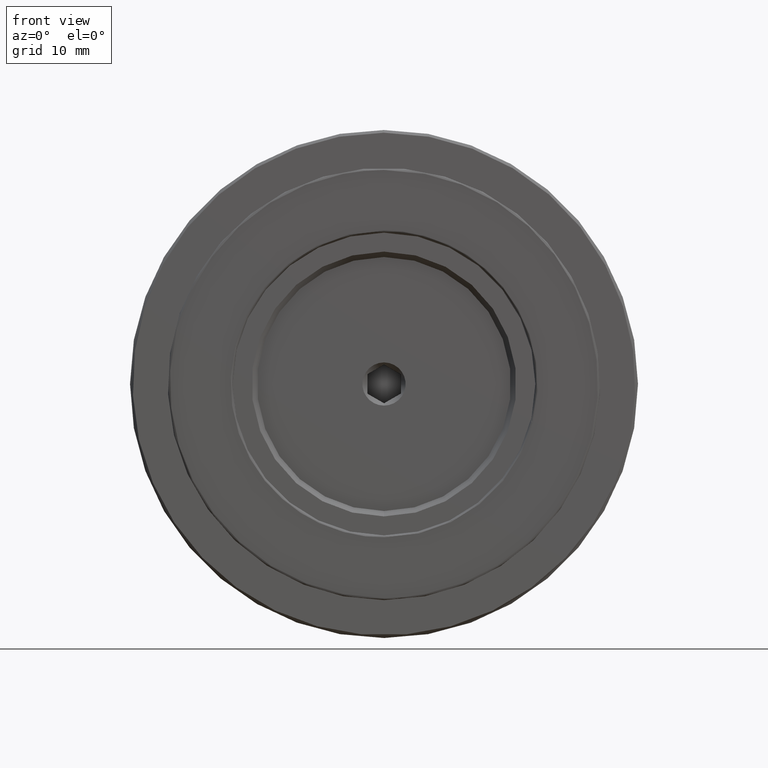
[diagram: clean part render]
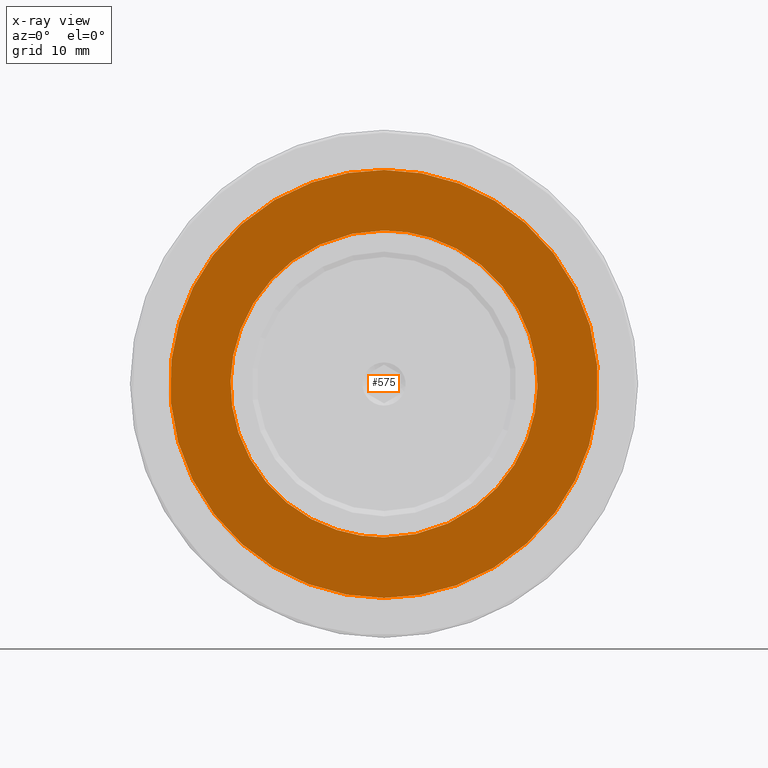
[diagram: x-ray — body ghosted, one internal face saturated and labeled with its STEP entity id]
A machine part, front view, then the same camera in x-ray: the body is ghosted and one INTERNAL B-rep face — a face not visible from any outside direction — is saturated and labeled: STEP entity #575.
In plain terms, the highlighted planar face has unit normal (0, 1, 0).
Its self-contained STEP definition (entity closure, byte-faithful):
#4 = CARTESIAN_POINT ( 'NONE',  ( -7.416387268887614681, 3.000000000000000000, 12.11045924268794671 ) ) ;
#7 = CARTESIAN_POINT ( 'NONE',  ( 0.000000000000000000, 3.000000000000000000, 14.20000000000000107 ) ) ;
#9 = CARTESIAN_POINT ( 'NONE',  ( 1.730011291808339902, 3.000000000000000444, 14.12097874383844953 ) ) ;
#13 = CARTESIAN_POINT ( 'NONE',  ( -3.706425153886331092, 3.000000000000000888, 13.72138168101778355 ) ) ;
#16 = CARTESIAN_POINT ( 'NONE',  ( -4.798924351256767196, 3.000000000000000000, -13.37246130060882798 ) ) ;
#25 = FACE_BOUND ( 'NONE', #448, .T. ) ;
#26 = CARTESIAN_POINT ( 'NONE',  ( 5.998205943359876002, 3.000000000000000444, 12.87497621973774464 ) ) ;
#28 = CARTESIAN_POINT ( 'NONE',  ( 7.138804101191232654, 3.000000000000001332, 18.46832826363610280 ) ) ;
#34 = CARTESIAN_POINT ( 'NONE',  ( 16.93856988259020113, 3.000000000000000888, 10.27487358570370013 ) ) ;
#36 = CARTESIAN_POINT ( 'NONE',  ( -19.13259729012592203, 3.000000000000000000, 5.168229993298614211 ) ) ;
#40 = CARTESIAN_POINT ( 'NONE',  ( 3.081251968856588697, 3.000000000000000444, 19.55983207345531483 ) ) ;
#42 = CARTESIAN_POINT ( 'NONE',  ( -18.39503843575699094, 3.000000000000000000, -7.325580478327587741 ) ) ;
#48 = CARTESIAN_POINT ( 'NONE',  ( -18.64612716550223581, 3.000000000000000000, -6.691391585285191290 ) ) ;
#52 = CARTESIAN_POINT ( 'NONE',  ( 18.18768613575041826, 3.000000000000000444, 7.829357525106005689 ) ) ;
#56 = CARTESIAN_POINT ( 'NONE',  ( -19.46211127315827483, 3.000000000000000000, -3.642334045259706610 ) ) ;
#60 = CARTESIAN_POINT ( 'NONE',  ( 1.082802891726577732, 3.000000000000000888, -14.17036702893942390 ) ) ;
#61 = CARTESIAN_POINT ( 'NONE',  ( 16.66359733036504309, 2.999999999999999112, -10.69446383543457557 ) ) ;
#63 = CARTESIAN_POINT ( 'NONE',  ( -19.23875786356212458, 3.000000000000000000, -4.700551688777544257 ) ) ;
#65 = CARTESIAN_POINT ( 'NONE',  ( 1.834886159228197977, 2.999999999999999112, -14.08393753001272231 ) ) ;
#66 = CARTESIAN_POINT ( 'NONE',  ( 15.82475369394309439, 2.999999999999999556, -11.97856748988204068 ) ) ;
#71 = CARTESIAN_POINT ( 'NONE',  ( 8.474581984828116532, 3.000000000000000000, 11.39866490199642257 ) ) ;
#72 = CARTESIAN_POINT ( 'NONE',  ( -11.74964521155649599, 3.000000000000000000, 7.974327091084079555 ) ) ;
#73 = CARTESIAN_POINT ( 'NONE',  ( 19.45468878221270614, 3.000000000000000000, 3.681774236538998490 ) ) ;
#75 = CARTESIAN_POINT ( 'NONE',  ( -10.27487358571512921, 3.000000000000000888, 16.93856988258366059 ) ) ;
#78 = CARTESIAN_POINT ( 'NONE',  ( 7.820564197478176105, 3.000000000000000000, 11.85252323523757134 ) ) ;
#81 = CARTESIAN_POINT ( 'NONE',  ( -13.22410563940344908, 3.000000000000000444, -5.173376533014694800 ) ) ;
#82 = CARTESIAN_POINT ( 'NONE',  ( 19.75870916176383929, 3.000000000000000000, -1.509731756243323453 ) ) ;
#84 = CARTESIAN_POINT ( 'NONE',  ( -18.43924353577552111, 2.999999999999999556, 7.213589522442043211 ) ) ;
#87 = CARTESIAN_POINT ( 'NONE',  ( 7.669756295061795015, 3.000000000000000444, -11.95066623152829877 ) ) ;
#88 = CARTESIAN_POINT ( 'NONE',  ( -7.669756295060129681, 3.000000000000000888, 11.95066623152905372 ) ) ;
#89 = CARTESIAN_POINT ( 'NONE',  ( 19.46600353387483295, 3.000000000000000000, 3.621469905571973680 ) ) ;
#90 = EDGE_CURVE ( 'NONE', #665, #1243, #550, .T. ) ;
#92 = CARTESIAN_POINT ( 'NONE',  ( -4.153607807517124328, 3.000000000000000000, 19.36063313184550339 ) ) ;
#94 = CARTESIAN_POINT ( 'NONE',  ( 13.72138168101400701, 3.000000000000000000, 3.706425153909070680 ) ) ;
#95 = CARTESIAN_POINT ( 'NONE',  ( -7.872727466868456148, 3.000000000000000000, -11.81794863245012550 ) ) ;
#102 = CARTESIAN_POINT ( 'NONE',  ( 11.81794863244995319, 3.000000000000000444, -7.872727466868832735 ) ) ;
#103 = CARTESIAN_POINT ( 'NONE',  ( -13.72138168101338884, 3.000000000000000444, -3.706425153902123792 ) ) ;
#116 = CARTESIAN_POINT ( 'NONE',  ( 4.147525266413648382, 3.000000000000000444, 13.59455466430607551 ) ) ;
#121 = CARTESIAN_POINT ( 'NONE',  ( -4.850803227461398137, 3.000000000000000000, 13.34666984494703712 ) ) ;
#129 = B_SPLINE_CURVE_WITH_KNOTS ( 'NONE', 3,
 ( #7, #523, #1244, #937, #1044, #530, #318, #1051, #942, #1142, #13, #429, #121, #842, #1258, #325, #537, #950, #722, #807, #4, #1347, #88, #1113, #1131, #713, #718, #902, #210, #389, #72, #824, #510, #308, #1246, #1233, #1227, #1241, #801, #909, #198, #1005, #1219, #1331, #706, #293, #286, #488, #926, #314, #700, #412, #1323, #496, #187, #625, #204, #1033, #604, #611, #103, #520, #934, #1012, #420, #81, #1119, #830, #1125, #1020, #504, #1106, #917, #181, #302, #1339, #618, #404, #594, #1026, #815, #95, #1147, #329, #548, #1254, #959, #836, #343, #725, #753, #16, #632, #740, #1042, #216, #139, #846, #851, #242, #553, #656 ),
 .UNSPECIFIED., .F., .F.,
 ( 4, 1, 1, 1, 1, 2, 2, 1, 1, 1, 1, 2, 2, 1, 1, 1, 2, 2, 2, 1, 1, 1, 2, 2, 1, 1, 1, 1, 2, 2, 1, 1, 1, 1, 2, 2, 2, 1, 1, 1, 1, 2, 2, 1, 1, 1, 1, 2, 2, 1, 1, 1, 2, 2, 2, 1, 1, 1, 2, 2, 1, 1, 1, 1, 2, 2, 1, 1, 1, 1, 2, 2, 4 ),
 ( 0.000000000000000000, 0.03125000000000022898, 0.04687500000000034694, 0.05468750000000039552, 0.05859375000000041633, 0.06054687500000043021, 0.06250000000000044409, 0.09375000000000084655, 0.1093750000000010408, 0.1171875000000011657, 0.1210937500000012074, 0.1230468750000012212, 0.1250000000000012490, 0.1562500000000021372, 0.1718750000000025535, 0.1796875000000027200, 0.1835937500000028033, 0.1875000000000029143, 0.2500000000000038303, 0.2812500000000043854, 0.2968750000000046629, 0.3046875000000048295, 0.3085937500000048850, 0.3125000000000048850, 0.3437500000000045519, 0.3593750000000043299, 0.3671875000000042744, 0.3710937500000042744, 0.3730468750000042744, 0.3750000000000043299, 0.4062500000000046074, 0.4218750000000047740, 0.4296875000000048295, 0.4335937500000048295, 0.4355468750000048295, 0.4375000000000048850, 0.5000000000000054401, 0.5312500000000056621, 0.5468750000000057732, 0.5546875000000058842, 0.5585937500000058842, 0.5605468750000058842, 0.5625000000000058842, 0.5937500000000058842, 0.6093750000000058842, 0.6171875000000059952, 0.6210937500000059952, 0.6230468750000059952, 0.6250000000000059952, 0.6562500000000054401, 0.6718750000000052180, 0.6796875000000052180, 0.6835937500000051070, 0.6875000000000049960, 0.7500000000000034417, 0.7812500000000027756, 0.7968750000000024425, 0.8046875000000021094, 0.8085937500000018874, 0.8125000000000017764, 0.8437500000000013323, 0.8593750000000011102, 0.8671875000000009992, 0.8710937500000008882, 0.8730468750000009992, 0.8750000000000009992, 0.9062500000000003331, 0.9218750000000001110, 0.9296874999999998890, 0.9335937499999998890, 0.9355468749999998890, 0.9374999999999998890, 1.000000000000000000 ),
 .UNSPECIFIED. ) ;
#132 = CARTESIAN_POINT ( 'NONE',  ( 0.000000000000000000, 3.000000000000000000, 14.20000000000000107 ) ) ;
#134 = CARTESIAN_POINT ( 'NONE',  ( 3.472566155666716892, 3.000000000000000000, 19.49317256158505884 ) ) ;
#139 = CARTESIAN_POINT ( 'NONE',  ( -2.697004024368328867, 3.000000000000000000, -13.94155648821191740 ) ) ;
#140 = CARTESIAN_POINT ( 'NONE',  ( 6.763846819823553069, 3.000000000000000888, 18.61013061852413131 ) ) ;
#142 = CARTESIAN_POINT ( 'NONE',  ( -19.47309619219853971, 3.000000000000000000, 3.583141907330241960 ) ) ;
#149 = CARTESIAN_POINT ( 'NONE',  ( -3.472566155665417487, 3.000000000000000000, -19.49317256158505529 ) ) ;
#154 = CARTESIAN_POINT ( 'NONE',  ( 10.76326471872024371, 3.000000000000000000, 16.61924596139300547 ) ) ;
#157 = CARTESIAN_POINT ( 'NONE',  ( -7.213589522438963009, 3.000000000000000000, -18.43924353577610731 ) ) ;
#161 = CARTESIAN_POINT ( 'NONE',  ( 2.558549258542372140, 3.000000000000000000, 19.63816641508817185 ) ) ;
#164 = CARTESIAN_POINT ( 'NONE',  ( -17.44277610778776477, 3.000000000000000000, -9.411654203769527882 ) ) ;
#167 = CARTESIAN_POINT ( 'NONE',  ( 18.16359589799271390, 3.000000000000000444, -7.910242654717952959 ) ) ;
#170 = CARTESIAN_POINT ( 'NONE',  ( -7.026526274942309414, 2.999999999999999556, -18.51160490855000162 ) ) ;
#174 = CARTESIAN_POINT ( 'NONE',  ( 17.74927439584680400, 3.000000000000000444, -8.820027942225207696 ) ) ;
#180 = CARTESIAN_POINT ( 'NONE',  ( 10.73381815341000944, 3.000000000000000444, 9.347961879281847075 ) ) ;
#181 = CARTESIAN_POINT ( 'NONE',  ( -11.91884916617823009, 2.999999999999999556, -7.719113968638293244 ) ) ;
#182 = CARTESIAN_POINT ( 'NONE',  ( 18.61013061852425210, 3.000000000000000000, -6.763846819818803979 ) ) ;
#184 = CARTESIAN_POINT ( 'NONE',  ( -8.363614776118732053, 3.000000000000000444, 17.95247335177376868 ) ) ;
#186 = CARTESIAN_POINT ( 'NONE',  ( 13.12450815807737747, 2.999999999999999556, -5.421599283992075691 ) ) ;
#187 = CARTESIAN_POINT ( 'NONE',  ( -14.02777076837137571, 3.000000000000000444, -2.209700421636168421 ) ) ;
#188 = CARTESIAN_POINT ( 'NONE',  ( 4.700551688765440161, 3.000000000000001332, -19.23875786356436990 ) ) ;
#195 = CARTESIAN_POINT ( 'NONE',  ( 13.88488799109564731, 3.000000000000000444, -2.978886455187739202 ) ) ;
#198 = CARTESIAN_POINT ( 'NONE',  ( -13.19240216099132468, 3.000000000000000444, 5.253696158561357521 ) ) ;
#199 = CARTESIAN_POINT ( 'NONE',  ( 9.411654203755773551, 3.000000000000000888, -17.44277610779676380 ) ) ;
#203 = CARTESIAN_POINT ( 'NONE',  ( 12.50942579821810341, 3.000000000000000000, -6.749849503557366681 ) ) ;
#204 = CARTESIAN_POINT ( 'NONE',  ( -13.98230959436743071, 3.000000000000000000, -2.477042311640894390 ) ) ;
#207 = CARTESIAN_POINT ( 'NONE',  ( -7.829357525114765792, 3.000000000000000000, 18.18768613574539472 ) ) ;
#209 = CARTESIAN_POINT ( 'NONE',  ( 13.04367664318270137, 3.000000000000000444, -5.615027597993797137 ) ) ;
#210 = CARTESIAN_POINT ( 'NONE',  ( -11.39866490200367011, 2.999999999999999556, 8.474581984816722979 ) ) ;
#216 = CARTESIAN_POINT ( 'NONE',  ( -2.781722452255339650, 3.000000000000000000, -13.92508270725363673 ) ) ;
#230 = CARTESIAN_POINT ( 'NONE',  ( 2.781722452252762157, 2.999999999999999556, 13.92508270725408437 ) ) ;
#238 = CARTESIAN_POINT ( 'NONE',  ( 17.44277610779923293, 3.000000000000000000, 9.411654203749513670 ) ) ;
#242 = CARTESIAN_POINT ( 'NONE',  ( -1.730011291807642237, 3.000000000000000444, -14.12097874383844953 ) ) ;
#244 = CARTESIAN_POINT ( 'NONE',  ( 3.528417264787766960, 3.000000000000000000, 19.48308486305747067 ) ) ;
#247 = CARTESIAN_POINT ( 'NONE',  ( 0.000000000000000000, 3.000000000000000000, 0.000000000000000000 ) ) ;
#249 = CARTESIAN_POINT ( 'NONE',  ( 2.530479713262244967, 3.000000000000000888, -13.97273671934008021 ) ) ;
#250 = CARTESIAN_POINT ( 'NONE',  ( 3.342195983484820054, 3.000000000000000000, 19.51614561369851941 ) ) ;
#253 = CARTESIAN_POINT ( 'NONE',  ( -18.46832826363607438, 3.000000000000000444, 7.138804101192748774 ) ) ;
#255 = CARTESIAN_POINT ( 'NONE',  ( 2.555583697174101054, 3.000000000000000444, -13.96817057994191558 ) ) ;
#256 = CARTESIAN_POINT ( 'NONE',  ( 7.249402286486083646, 2.999999999999999112, 18.42519663997724422 ) ) ;
#259 = CARTESIAN_POINT ( 'NONE',  ( -8.820027942236979612, 3.000000000000000000, -17.74927439584292443 ) ) ;
#263 = CARTESIAN_POINT ( 'NONE',  ( 16.38332867207753907, 3.000000000000000444, 11.11910680565512344 ) ) ;
#265 = CARTESIAN_POINT ( 'NONE',  ( -19.80001621424732150, 3.000000000000000000, 0.6053561151454147637 ) ) ;
#268 = CARTESIAN_POINT ( 'NONE',  ( 19.63818769628777616, 3.000000000000000444, -2.558434240462676090 ) ) ;
#270 = CARTESIAN_POINT ( 'NONE',  ( -19.51615226407340842, 3.000000000000000000, 3.342160040330514725 ) ) ;
#275 = CARTESIAN_POINT ( 'NONE',  ( 19.55984448748841231, 2.999999999999999556, -3.081184874976765187 ) ) ;
#280 = CARTESIAN_POINT ( 'NONE',  ( 11.91884916617795653, 2.999999999999999556, 7.719113968638859014 ) ) ;
#281 = CARTESIAN_POINT ( 'NONE',  ( 3.681774236540197975, 3.000000000000000000, -19.45468878221224074 ) ) ;
#283 = CARTESIAN_POINT ( 'NONE',  ( -3.740909107246154885, 3.000000000000000444, 19.44346757633632095 ) ) ;
#285 = CARTESIAN_POINT ( 'NONE',  ( 12.11045924267994067, 3.000000000000001332, 7.416387268901814878 ) ) ;
#286 = CARTESIAN_POINT ( 'NONE',  ( -13.94155648821209148, 2.999999999999999556, 2.697004024367753772 ) ) ;
#287 = CARTESIAN_POINT ( 'NONE',  ( 17.18714439674351624, 3.000000000000000444, -9.840903924965051175 ) ) ;
#289 = CARTESIAN_POINT ( 'NONE',  ( -18.42519663997739343, 3.000000000000000444, 7.249402286486132496 ) ) ;
#292 = CARTESIAN_POINT ( 'NONE',  ( 8.590610968959124349, 3.000000000000000000, -11.34912974933076057 ) ) ;
#293 = CARTESIAN_POINT ( 'NONE',  ( -13.92508270725393515, 3.000000000000000444, 2.781722452254356437 ) ) ;
#294 = CARTESIAN_POINT ( 'NONE',  ( 16.88639066887527207, 3.000000000000000888, -10.34120686983032478 ) ) ;
#301 = CARTESIAN_POINT ( 'NONE',  ( 13.94155648821216076, 3.000000000000000444, -2.697004024366957076 ) ) ;
#302 = CARTESIAN_POINT ( 'NONE',  ( -11.34912974933079788, 3.000000000000001332, -8.590610968960662674 ) ) ;
#305 = CARTESIAN_POINT ( 'NONE',  ( -11.11910680565343945, 3.000000000000000888, 16.38332867207820698 ) ) ;
#307 = CARTESIAN_POINT ( 'NONE',  ( 14.20001621245517853, 3.000000000000000444, 0.4340943566674300147 ) ) ;
#308 = CARTESIAN_POINT ( 'NONE',  ( -12.14784045183978733, 3.000000000000000888, 7.368892902801093214 ) ) ;
#313 = CARTESIAN_POINT ( 'NONE',  ( 2.429699249508348905E-15, 3.000000000000000000, -19.80000000000000426 ) ) ;
#314 = CARTESIAN_POINT ( 'NONE',  ( -14.12094629255596523, 3.000000000000000444, 1.730186617944320160 ) ) ;
#318 = CARTESIAN_POINT ( 'NONE',  ( -2.477063362970028049, 3.000000000000000888, 13.98230569957839187 ) ) ;
#325 = CARTESIAN_POINT ( 'NONE',  ( -5.173376533013583689, 3.000000000000000000, 13.22410563940375461 ) ) ;
#329 = CARTESIAN_POINT ( 'NONE',  ( -7.368892902803392708, 3.000000000000000444, -12.14784045183863803 ) ) ;
#343 = CARTESIAN_POINT ( 'NONE',  ( -5.338307333424706869, 2.999999999999999112, -13.15839622942529630 ) ) ;
#344 = CARTESIAN_POINT ( 'NONE',  ( 14.48387497789035727, 3.000000000000000888, 13.51757983630651161 ) ) ;
#350 = CARTESIAN_POINT ( 'NONE',  ( 4.472002724374330107, 3.000000000000000444, -13.48095980255595627 ) ) ;
#351 = CARTESIAN_POINT ( 'NONE',  ( 7.910242654749028546, 2.999999999999999556, 18.16359589797801632 ) ) ;
#354 = CARTESIAN_POINT ( 'NONE',  ( -6.763846819809253397, 2.999999999999999556, -18.61013061852770889 ) ) ;
#360 = CARTESIAN_POINT ( 'NONE',  ( -5.168229993254894516, 3.000000000000000444, -19.13259729013419275 ) ) ;
#362 = CARTESIAN_POINT ( 'NONE',  ( 2.477063362969727400, 3.000000000000000444, -13.98230569957839542 ) ) ;
#366 = CARTESIAN_POINT ( 'NONE',  ( -7.249402286487605096, 3.000000000000000888, -18.42519663997647328 ) ) ;
#369 = CARTESIAN_POINT ( 'NONE',  ( 0.4341819849685836785, 2.999999999999999556, -14.19999999999999574 ) ) ;
#370 = CARTESIAN_POINT ( 'NONE',  ( 15.16772011751734439, 3.000000000000000000, 12.75948386910768484 ) ) ;
#372 = CARTESIAN_POINT ( 'NONE',  ( -3.528417264787016006, 3.000000000000000888, -19.48308486305747422 ) ) ;
#376 = CARTESIAN_POINT ( 'NONE',  ( 19.35264957303652267, 3.000000000000000000, -4.234117411515136098 ) ) ;
#378 = CARTESIAN_POINT ( 'NONE',  ( -10.34120686983546911, 3.000000000000000444, -16.88639066887358453 ) ) ;
#380 = CARTESIAN_POINT ( 'NONE',  ( 13.98230959436742893, 2.999999999999999556, 2.477042311639563898 ) ) ;
#383 = CARTESIAN_POINT ( 'NONE',  ( 7.443540500197413756, 2.999999999999999112, -18.34763054796759008 ) ) ;
#388 = CARTESIAN_POINT ( 'NONE',  ( 13.27600511154736296, 2.999999999999999556, 5.039206408471651244 ) ) ;
#389 = CARTESIAN_POINT ( 'NONE',  ( -11.64627428617496641, 2.999999999999999556, 8.125977182826503054 ) ) ;
#390 = CARTESIAN_POINT ( 'NONE',  ( 18.42519663997633828, 3.000000000000000000, -7.249402286488025204 ) ) ;
#396 = CARTESIAN_POINT ( 'NONE',  ( 10.87780390053109514, 3.000000000000000444, -9.150809940503922491 ) ) ;
#398 = CARTESIAN_POINT ( 'NONE',  ( 19.48308685025281406, 2.999999999999999112, -3.528406524632257568 ) ) ;
#400 = CARTESIAN_POINT ( 'NONE',  ( -11.33054582022643153, 3.000000000000000444, 16.23920533858844806 ) ) ;
#403 = CARTESIAN_POINT ( 'NONE',  ( 11.74964521155497543, 2.999999999999999556, -7.974327091086322206 ) ) ;
#404 = CARTESIAN_POINT ( 'NONE',  ( -9.150809940501241968, 3.000000000000001332, -10.87780390053238833 ) ) ;
#405 = CARTESIAN_POINT ( 'NONE',  ( 1.211243036399705764, 3.000000000000000000, -19.80000000000000071 ) ) ;
#408 = CARTESIAN_POINT ( 'NONE',  ( -12.75948386910132193, 3.000000000000000444, 15.16772011751985616 ) ) ;
#410 = CARTESIAN_POINT ( 'NONE',  ( 12.72931748239331640, 3.000000000000000444, 6.325397282971376711 ) ) ;
#412 = CARTESIAN_POINT ( 'NONE',  ( -14.20001621245518386, 3.000000000000000888, -0.4340943566729716929 ) ) ;
#415 = CARTESIAN_POINT ( 'NONE',  ( -14.96698312987518875, 3.000000000000000000, 13.03439284669734022 ) ) ;
#420 = CARTESIAN_POINT ( 'NONE',  ( -13.24496599267793329, 3.000000000000000000, -5.119736970926531683 ) ) ;
#429 = CARTESIAN_POINT ( 'NONE',  ( -4.472002724373625782, 3.000000000000000000, 13.48095980255575732 ) ) ;
#430 = FACE_OUTER_BOUND ( 'NONE', #734, .T. ) ;
#444 = CARTESIAN_POINT ( 'NONE',  ( 5.615027597992565234, 3.000000000000000444, 13.04367664318331244 ) ) ;
#446 = CARTESIAN_POINT ( 'NONE',  ( 0.000000000000000000, 3.000000000000000000, 19.80000000000000426 ) ) ;
#448 = EDGE_LOOP ( 'NONE', ( #809, #1170 ) ) ;
#455 = CARTESIAN_POINT ( 'NONE',  ( -19.75870916176383929, 3.000000000000000000, 1.509731756224550914 ) ) ;
#458 = CARTESIAN_POINT ( 'NONE',  ( 8.820027942279589084, 2.999999999999999556, 17.74927439582107169 ) ) ;
#460 = CARTESIAN_POINT ( 'NONE',  ( -14.48387497788971423, 3.000000000000000888, -13.51757983630604976 ) ) ;
#463 = CARTESIAN_POINT ( 'NONE',  ( 1.509885113682916780, 3.000000000000000000, 19.75868078683102169 ) ) ;
#466 = CARTESIAN_POINT ( 'NONE',  ( -6.235696467292281220, 3.000000000000000444, -18.79736952587457566 ) ) ;
#468 = CARTESIAN_POINT ( 'NONE',  ( 5.168229993287580371, 3.000000000000000444, 19.13259729012602151 ) ) ;
#472 = CARTESIAN_POINT ( 'NONE',  ( -9.840903924973883221, 3.000000000000000888, -17.18714439674061722 ) ) ;
#476 = CARTESIAN_POINT ( 'NONE',  ( 8.363614776108407867, 3.000000000000000000, -17.95247335178050818 ) ) ;
#478 = CARTESIAN_POINT ( 'NONE',  ( -19.41667247643191985, 3.000000000000000444, -3.878712558700827540 ) ) ;
#482 = CARTESIAN_POINT ( 'NONE',  ( 2.209767512049998661, 3.000000000000000000, -14.02775835571037710 ) ) ;
#483 = CARTESIAN_POINT ( 'NONE',  ( 10.97745174759765874, 2.999999999999999556, -16.47855889594601209 ) ) ;
#484 = ORIENTED_EDGE ( 'NONE', *, *, #793, .T. ) ;
#487 = CARTESIAN_POINT ( 'NONE',  ( 8.125977182833143075, 3.000000000000000888, 11.64627428617074223 ) ) ;
#488 = CARTESIAN_POINT ( 'NONE',  ( -13.95237178085820950, 3.000000000000000444, 2.640476279224353906 ) ) ;
#489 = CARTESIAN_POINT ( 'NONE',  ( 19.79996757150536268, 3.000000000000000444, 1.210712230312306792 ) ) ;
#491 = CARTESIAN_POINT ( 'NONE',  ( -3.878712558700825763, 3.000000000000000000, 19.41667247643191274 ) ) ;
#495 = CARTESIAN_POINT ( 'NONE',  ( 7.368892902795777466, 3.000000000000000000, 12.14784045184310735 ) ) ;
#496 = CARTESIAN_POINT ( 'NONE',  ( -14.08395880886015128, 2.999999999999999556, -1.834771147090209054 ) ) ;
#498 = CARTESIAN_POINT ( 'NONE',  ( 11.33054582023130052, 3.000000000000000444, -16.23920533858526127 ) ) ;
#500 = CARTESIAN_POINT ( 'NONE',  ( -7.365999281344150162, 3.000000000000000000, 18.37889477448356601 ) ) ;
#503 = CARTESIAN_POINT ( 'NONE',  ( 11.85252323523766549, 3.000000000000000444, -7.820564197477978929 ) ) ;
#504 = CARTESIAN_POINT ( 'NONE',  ( -12.11045924268475105, 3.000000000000000000, -7.416387268893537055 ) ) ;
#505 = CARTESIAN_POINT ( 'NONE',  ( 6.691391585275955123, 3.000000000000000000, -18.64612716550394822 ) ) ;
#509 = CARTESIAN_POINT ( 'NONE',  ( 13.48095980255292581, 3.000000000000000000, 4.472002724390681472 ) ) ;
#510 = CARTESIAN_POINT ( 'NONE',  ( -11.85252323523798168, 3.000000000000000000, 7.820564197477518853 ) ) ;
#514 = CARTESIAN_POINT ( 'NONE',  ( -18.16359589797574614, 3.000000000000000444, 7.910242654748324220 ) ) ;
#517 = CARTESIAN_POINT ( 'NONE',  ( 14.08395880886014950, 3.000000000000000000, 1.834771147082935538 ) ) ;
#520 = CARTESIAN_POINT ( 'NONE',  ( -13.48095980255246573, 3.000000000000000000, -4.472002724385468753 ) ) ;
#523 = CARTESIAN_POINT ( 'NONE',  ( -0.4341819849698525524, 2.999999999999999556, 14.20000000000000284 ) ) ;
#526 = CARTESIAN_POINT ( 'NONE',  ( 6.749849503554551156, 2.999999999999999112, 12.50942579821949963 ) ) ;
#530 = CARTESIAN_POINT ( 'NONE',  ( -2.396918118229163674, 3.000000000000000000, 13.99642766234944347 ) ) ;
#531 = CARTESIAN_POINT ( 'NONE',  ( -1.509885113672168711, 3.000000000000000000, -19.75868078683102524 ) ) ;
#537 = CARTESIAN_POINT ( 'NONE',  ( -5.199069047050950410, 3.000000000000000000, 13.21402848904016025 ) ) ;
#548 = CARTESIAN_POINT ( 'NONE',  ( -6.749849503567865838, 3.000000000000000000, -12.50942579821168721 ) ) ;
#549 = CARTESIAN_POINT ( 'NONE',  ( 6.235696467316794944, 3.000000000000000000, 18.79736952586845788 ) ) ;
#550 = B_SPLINE_CURVE_WITH_KNOTS ( 'NONE', 3,
 ( #446, #975, #463, #161, #40, #250, #134, #244, #1193, #755, #1303, #468, #549, #140, #775, #28, #554, #256, #351, #458, #1275, #767, #980, #1183, #154, #1083, #663, #344, #370, #877, #781, #263, #885, #986, #34, #238, #1175, #52, #652, #1063, #1168, #967, #1021, #1006, #1220, #1325, #891, #590, #73, #994, #89, #1310, #489, #1095, #82, #268, #275, #689, #1107, #398, #1206, #1000, #376, #684, #1101, #182, #903, #788, #808, #390, #167, #174, #287, #294, #583, #61, #802, #66, #707, #1120, #897, #701, #498, #595, #483, #1228, #1114, #199, #476, #612, #1316, #383, #910, #605, #505, #1340, #188, #794, #1332, #1214, #281, #694, #1013, #918, #405, #1199 ),
 .UNSPECIFIED., .F., .F.,
 ( 4, 1, 1, 1, 1, 1, 2, 2, 1, 1, 1, 1, 2, 2, 1, 1, 1, 2, 2, 2, 1, 1, 1, 2, 2, 1, 1, 1, 1, 2, 2, 1, 1, 1, 1, 1, 2, 2, 2, 1, 1, 1, 1, 1, 2, 2, 1, 1, 1, 1, 2, 2, 1, 1, 1, 2, 2, 2, 1, 1, 1, 2, 2, 1, 1, 1, 1, 2, 2, 1, 1, 1, 1, 1, 2, 2, 4 ),
 ( 0.000000000000000000, 0.03124999999999923672, 0.04687499999999885508, 0.05468749999999866079, 0.05859374999999855671, 0.06054687499999852202, 0.06152343749999848732, 0.06249999999999845957, 0.09374999999999845957, 0.1093749999999984873, 0.1171874999999985151, 0.1210937499999985151, 0.1230468749999984873, 0.1249999999999984734, 0.1562499999999985567, 0.1718749999999986122, 0.1796874999999985845, 0.1835937499999985567, 0.1874999999999985567, 0.2499999999999980016, 0.2812499999999976685, 0.2968749999999975575, 0.3046874999999975575, 0.3085937499999975020, 0.3124999999999974465, 0.3437499999999974465, 0.3593749999999975020, 0.3671874999999975575, 0.3710937499999976130, 0.3730468749999976130, 0.3749999999999976130, 0.4062499999999977240, 0.4218749999999977240, 0.4296874999999977240, 0.4335937499999977240, 0.4355468749999977240, 0.4365234374999977796, 0.4374999999999977796, 0.4999999999999970024, 0.5312499999999965583, 0.5468749999999964473, 0.5546874999999963363, 0.5585937499999962252, 0.5605468749999962252, 0.5615234374999961142, 0.5624999999999961142, 0.5937499999999945599, 0.6093749999999938938, 0.6171874999999935607, 0.6210937499999933387, 0.6230468749999933387, 0.6249999999999932276, 0.6562499999999920064, 0.6718749999999913403, 0.6796874999999910072, 0.6835937499999910072, 0.6874999999999908962, 0.7499999999999898970, 0.7812499999999894529, 0.7968749999999893419, 0.8046874999999892308, 0.8085937499999892308, 0.8124999999999892308, 0.8437499999999900080, 0.8593749999999904521, 0.8671874999999906741, 0.8710937499999907851, 0.8730468749999908962, 0.8749999999999908962, 0.9062499999999932276, 0.9218749999999942268, 0.9296874999999947820, 0.9335937499999951150, 0.9355468749999951150, 0.9365234374999952260, 0.9374999999999953371, 1.000000000000000000 ),
 .UNSPECIFIED. ) ;
#553 = CARTESIAN_POINT ( 'NONE',  ( -0.8687195103901316218, 3.000000000000000444, -14.20000000000000462 ) ) ;
#554 = CARTESIAN_POINT ( 'NONE',  ( 7.213589522441262503, 3.000000000000000000, 18.43924353577553532 ) ) ;
#556 = CARTESIAN_POINT ( 'NONE',  ( -3.342195983482302513, 3.000000000000000000, -19.51614561369852296 ) ) ;
#565 = CARTESIAN_POINT ( 'NONE',  ( -18.37889477448356246, 2.999999999999999112, -7.365999281344152827 ) ) ;
#572 = CARTESIAN_POINT ( 'NONE',  ( -16.47855889594651657, 2.999999999999999112, -10.97745174759688602 ) ) ;
#575 = ADVANCED_FACE ( 'NONE', ( #25, #430 ), #1171, .T. ) ;
#579 = CARTESIAN_POINT ( 'NONE',  ( -19.63818769628778327, 3.000000000000000444, 2.558434240448591357 ) ) ;
#583 = CARTESIAN_POINT ( 'NONE',  ( 16.75327720086389860, 3.000000000000000444, -10.55345062195015160 ) ) ;
#587 = CARTESIAN_POINT ( 'NONE',  ( -18.18768613574539472, 3.000000000000000444, -7.829357525114763128 ) ) ;
#590 = CARTESIAN_POINT ( 'NONE',  ( 19.44346757633750045, 3.000000000000000444, 3.740909107242130549 ) ) ;
#593 = CARTESIAN_POINT ( 'NONE',  ( 9.694465362568458033, 3.000000000000000000, 10.38739349963254277 ) ) ;
#594 = CARTESIAN_POINT ( 'NONE',  ( -8.474581984821110581, 3.000000000000000444, -11.39866490200031635 ) ) ;
#595 = CARTESIAN_POINT ( 'NONE',  ( 11.11910680565637044, 3.000000000000000000, -16.38332867207628851 ) ) ;
#597 = CARTESIAN_POINT ( 'NONE',  ( -15.82475369391771913, 3.000000000000000000, 11.97856748991182485 ) ) ;
#601 = CARTESIAN_POINT ( 'NONE',  ( 13.18082072000020588, 3.000000000000000000, -5.282691788219424645 ) ) ;
#604 = CARTESIAN_POINT ( 'NONE',  ( -13.96817057994208078, 2.999999999999999556, -2.555583697173564595 ) ) ;
#605 = CARTESIAN_POINT ( 'NONE',  ( 7.325580478328152623, 3.000000000000000000, -18.39503843575688791 ) ) ;
#607 = CARTESIAN_POINT ( 'NONE',  ( -7.325580478327585965, 2.999999999999999556, 18.39503843575698383 ) ) ;
#610 = CARTESIAN_POINT ( 'NONE',  ( 13.15839622942617204, 3.000000000000000444, -5.338307333423273349 ) ) ;
#611 = CARTESIAN_POINT ( 'NONE',  ( -13.87918665668772356, 3.000000000000000000, -3.036541697514686611 ) ) ;
#612 = CARTESIAN_POINT ( 'NONE',  ( 7.829357525108746607, 3.000000000000000444, -18.18768613574933823 ) ) ;
#617 = CARTESIAN_POINT ( 'NONE',  ( 13.97273871423202607, 3.000000000000000888, 2.530468930873623012 ) ) ;
#618 = CARTESIAN_POINT ( 'NONE',  ( -9.694465362563128963, 3.000000000000000000, -10.38739349963550396 ) ) ;
#622 = CARTESIAN_POINT ( 'NONE',  ( -5.783052985809681523, 3.000000000000000000, 18.95582101055332203 ) ) ;
#624 = CARTESIAN_POINT ( 'NONE',  ( 12.14784045184230621, 2.999999999999999556, -7.368892902797391287 ) ) ;
#625 = CARTESIAN_POINT ( 'NONE',  ( -13.99643431198926891, 3.000000000000000000, -2.396882176935521080 ) ) ;
#632 = CARTESIAN_POINT ( 'NONE',  ( -4.147525266424636925, 3.000000000000000000, -13.59455466430416237 ) ) ;
#636 = CARTESIAN_POINT ( 'NONE',  ( 2.429699249508348905E-15, 3.000000000000000000, -19.80000000000000426 ) ) ;
#637 = CARTESIAN_POINT ( 'NONE',  ( 5.421599283991413110, 3.000000000000000444, 13.12450815807771143 ) ) ;
#647 = DIRECTION ( 'NONE',  ( 0.000000000000000000, -0.000000000000000000, 1.000000000000000000 ) ) ;
#652 = CARTESIAN_POINT ( 'NONE',  ( 18.30038356822856471, 3.000000000000000444, 7.559669515313443888 ) ) ;
#656 = CARTESIAN_POINT ( 'NONE',  ( 1.738998454789241549E-15, 3.000000000000000000, -14.20000000000000107 ) ) ;
#661 = CARTESIAN_POINT ( 'NONE',  ( -19.45468878221203468, 3.000000000000000444, -3.681774236541330403 ) ) ;
#662 = CARTESIAN_POINT ( 'NONE',  ( 4.850803227461809364, 3.000000000000000000, -13.34666984494715258 ) ) ;
#663 = CARTESIAN_POINT ( 'NONE',  ( 13.03439284670022857, 3.000000000000000888, 14.96698312986790746 ) ) ;
#665 = VERTEX_POINT ( 'NONE', #1277 ) ;
#666 = CARTESIAN_POINT ( 'NONE',  ( -19.35264957303631661, 3.000000000000000444, 4.234117411527638986 ) ) ;
#668 = CARTESIAN_POINT ( 'NONE',  ( 5.119736970924492425, 2.999999999999999112, -13.24496599267857277 ) ) ;
#673 = CARTESIAN_POINT ( 'NONE',  ( -17.95247335177376158, 2.999999999999999112, -8.363614776118730276 ) ) ;
#676 = CARTESIAN_POINT ( 'NONE',  ( 7.057559989981163184, 3.000000000000000000, -12.32616377432936439 ) ) ;
#680 = CARTESIAN_POINT ( 'NONE',  ( -4.234117411502668737, 3.000000000000000000, -19.35264957304104172 ) ) ;
#682 = CARTESIAN_POINT ( 'NONE',  ( 0.000000000000000000, 3.000000000000000000, 14.20000000000000107 ) ) ;
#684 = CARTESIAN_POINT ( 'NONE',  ( 19.13259729012628085, 3.000000000000000444, -5.168229993276725054 ) ) ;
#686 = CARTESIAN_POINT ( 'NONE',  ( -19.47630693512028088, 3.000000000000000444, 3.565641053980509234 ) ) ;
#689 = CARTESIAN_POINT ( 'NONE',  ( 19.51615226407340842, 3.000000000000000000, -3.342160040334915649 ) ) ;
#693 = CARTESIAN_POINT ( 'NONE',  ( 11.34912974933512686, 3.000000000000000444, 8.590610968951596149 ) ) ;
#694 = CARTESIAN_POINT ( 'NONE',  ( 3.642334045259132402, 3.000000000000000888, -19.46211127315837430 ) ) ;
#696 = CARTESIAN_POINT ( 'NONE',  ( -7.443540500199307353, 3.000000000000000888, 18.34763054796636439 ) ) ;
#699 = CARTESIAN_POINT ( 'NONE',  ( 13.95799841710783795, 3.000000000000000888, -2.610553116949489549 ) ) ;
#700 = CARTESIAN_POINT ( 'NONE',  ( -14.19996757508963547, 2.999999999999999112, 0.8681887133459453842 ) ) ;
#701 = CARTESIAN_POINT ( 'NONE',  ( 11.81659851331422928, 3.000000000000000444, -15.89397157663446158 ) ) ;
#703 = CARTESIAN_POINT ( 'NONE',  ( -16.75327720085608973, 3.000000000000000888, 10.55345062196415284 ) ) ;
#705 = CARTESIAN_POINT ( 'NONE',  ( 14.19996757508963725, 2.999999999999999556, -0.8681887133348712426 ) ) ;
#706 = CARTESIAN_POINT ( 'NONE',  ( -13.88488799109541816, 3.000000000000001332, 2.978886455190285165 ) ) ;
#707 = CARTESIAN_POINT ( 'NONE',  ( 14.96698312986247537, 3.000000000000001332, -13.03439284670565890 ) ) ;
#711 = CARTESIAN_POINT ( 'NONE',  ( 7.719113968638390944, 3.000000000000000444, -11.91884916617823365 ) ) ;
#713 = CARTESIAN_POINT ( 'NONE',  ( -9.347961879270801688, 2.999999999999999556, 10.73381815342736623 ) ) ;
#716 = CARTESIAN_POINT ( 'NONE',  ( -11.81659851330588751, 2.999999999999999556, 15.89397157663991322 ) ) ;
#717 = CARTESIAN_POINT ( 'NONE',  ( 14.17039540073598758, 3.000000000000000444, 1.082649542199564330 ) ) ;
#718 = CARTESIAN_POINT ( 'NONE',  ( -10.38739349963806369, 3.000000000000000888, 9.694465362559784083 ) ) ;
#722 = CARTESIAN_POINT ( 'NONE',  ( -6.325397282938908461, 3.000000000000000000, 12.72931748241162708 ) ) ;
#725 = CARTESIAN_POINT ( 'NONE',  ( -5.282691788220154727, 3.000000000000000888, -13.18082071999976179 ) ) ;
#730 = CARTESIAN_POINT ( 'NONE',  ( 2.978886455187309323, 3.000000000000000000, 13.88488799109570415 ) ) ;
#734 = EDGE_LOOP ( 'NONE', ( #905, #484 ) ) ;
#739 = CARTESIAN_POINT ( 'NONE',  ( 0.8687195103908673666, 3.000000000000000444, 14.20000000000000107 ) ) ;
#740 = CARTESIAN_POINT ( 'NONE',  ( -3.371165145867376811, 3.000000000000000444, -13.79747498308616294 ) ) ;
#753 = CARTESIAN_POINT ( 'NONE',  ( -5.253696158561206531, 3.000000000000000000, -13.19240216099136731 ) ) ;
#755 = CARTESIAN_POINT ( 'NONE',  ( 3.583141907330436915, 2.999999999999999112, 19.47309619219852905 ) ) ;
#763 = CARTESIAN_POINT ( 'NONE',  ( -18.61013061852409578, 3.000000000000000444, 6.763846819828385648 ) ) ;
#767 = CARTESIAN_POINT ( 'NONE',  ( 10.34120686985411375, 3.000000000000000000, 16.88639066886401352 ) ) ;
#769 = CARTESIAN_POINT ( 'NONE',  ( -16.38332867207724775, 3.000000000000000444, -11.11910680565490850 ) ) ;
#775 = CARTESIAN_POINT ( 'NONE',  ( 7.026526274949969952, 3.000000000000000444, 18.51160490854809382 ) ) ;
#778 = CARTESIAN_POINT ( 'NONE',  ( -10.76326471872110702, 3.000000000000000444, -16.61924596139201071 ) ) ;
#781 = CARTESIAN_POINT ( 'NONE',  ( 16.23920533858734316, 3.000000000000000888, 11.33054582022922929 ) ) ;
#783 = CARTESIAN_POINT ( 'NONE',  ( -16.52675377707250348, 3.000000000000000000, -10.90473805843965849 ) ) ;
#788 = CARTESIAN_POINT ( 'NONE',  ( 18.46832826363612767, 3.000000000000000888, -7.138804101189741402 ) ) ;
#787 = B_SPLINE_CURVE_WITH_KNOTS ( 'NONE', 3,
 ( #999, #369, #60, #65, #482, #1088, #362, #249, #255, #896, #869, #350, #662, #1073, #668, #974, #1287, #1081, #1093, #676, #1118, #1124, #87, #711, #292, #1232, #813, #396, #1105, #1031, #403, #102, #503, #624, #203, #1112, #209, #186, #610, #601, #806, #916, #823, #1130, #195, #1338, #301, #1004, #699, #1218, #705, #307, #717, #517, #1315, #1226, #380, #617, #1019, #1025, #94, #509, #792, #388, #800, #924, #1346, #1321, #410, #1239, #285, #1211, #908, #280, #693, #180, #593, #1330, #71, #487, #901, #1011, #78, #495, #526, #26, #444, #637, #1165, #855, #1053, #958, #116, #1273, #730, #230, #835, #1060, #1245, #9, #739, #132 ),
 .UNSPECIFIED., .F., .F.,
 ( 4, 1, 1, 1, 1, 2, 2, 1, 1, 1, 1, 2, 2, 1, 1, 1, 2, 2, 2, 1, 1, 1, 2, 2, 1, 1, 1, 1, 2, 2, 1, 1, 1, 1, 2, 2, 2, 1, 1, 1, 1, 2, 2, 1, 1, 1, 1, 2, 2, 1, 1, 1, 2, 2, 2, 1, 1, 1, 2, 2, 1, 1, 1, 1, 2, 2, 1, 1, 1, 1, 2, 2, 4 ),
 ( 0.000000000000000000, 0.03125000000000118655, 0.04687500000000177636, 0.05468750000000206085, 0.05859375000000220657, 0.06054687500000226902, 0.06250000000000233147, 0.09375000000000389966, 0.1093750000000047046, 0.1171875000000051070, 0.1210937500000052597, 0.1230468750000053291, 0.1250000000000053846, 0.1562500000000061895, 0.1718750000000065226, 0.1796875000000067168, 0.1835937500000068279, 0.1875000000000069389, 0.2500000000000081046, 0.2812500000000087708, 0.2968750000000091593, 0.3046875000000093259, 0.3085937500000094369, 0.3125000000000095479, 0.3437500000000101585, 0.3593750000000105471, 0.3671875000000107137, 0.3710937500000108247, 0.3730468750000108247, 0.3750000000000108247, 0.4062500000000106026, 0.4218750000000104916, 0.4296875000000104361, 0.4335937500000104361, 0.4355468750000104361, 0.4375000000000104361, 0.5000000000000109912, 0.5312500000000113243, 0.5468750000000114353, 0.5546875000000115463, 0.5585937500000115463, 0.5605468750000116573, 0.5625000000000116573, 0.5937500000000117684, 0.6093750000000117684, 0.6171875000000117684, 0.6210937500000117684, 0.6230468750000117684, 0.6250000000000117684, 0.6562500000000112133, 0.6718750000000111022, 0.6796875000000108802, 0.6835937500000108802, 0.6875000000000107692, 0.7500000000000087708, 0.7812500000000077716, 0.7968750000000073275, 0.8046875000000069944, 0.8085937500000068834, 0.8125000000000066613, 0.8437500000000056621, 0.8593750000000051070, 0.8671875000000048850, 0.8710937500000046629, 0.8730468750000046629, 0.8750000000000045519, 0.9062500000000034417, 0.9218750000000027756, 0.9296875000000025535, 0.9335937500000023315, 0.9355468750000023315, 0.9375000000000023315, 1.000000000000000000 ),
 .UNSPECIFIED. ) ;
#790 = CARTESIAN_POINT ( 'NONE',  ( -10.69446383543620982, 3.000000000000000444, -16.66359733036451729 ) ) ;
#792 = CARTESIAN_POINT ( 'NONE',  ( 13.34666984494537800, 2.999999999999999112, 4.850803227471347512 ) ) ;
#793 = EDGE_CURVE ( 'NONE', #1243, #665, #1145, .T. ) ;
#794 = CARTESIAN_POINT ( 'NONE',  ( 4.153607807510064198, 3.000000000000000444, -19.36063313184680368 ) ) ;
#800 = CARTESIAN_POINT ( 'NONE',  ( 13.24496599267801500, 3.000000000000000444, 5.119736970927486475 ) ) ;
#801 = CARTESIAN_POINT ( 'NONE',  ( -13.15839622942557341, 3.000000000000000000, 5.338307333424156198 ) ) ;
#802 = CARTESIAN_POINT ( 'NONE',  ( 16.61924596139093424, 2.999999999999999112, -10.76326471872230250 ) ) ;
#804 = CARTESIAN_POINT ( 'NONE',  ( -10.97745174759612397, 2.999999999999999556, 16.47855889594701750 ) ) ;
#806 = CARTESIAN_POINT ( 'NONE',  ( 13.19240216099129803, 3.000000000000000444, -5.253696158561575125 ) ) ;
#807 = CARTESIAN_POINT ( 'NONE',  ( -7.057559989972120640, 2.999999999999999112, 12.32616377433343402 ) ) ;
#808 = CARTESIAN_POINT ( 'NONE',  ( 18.43924353577554598, 3.000000000000000000, -7.213589522440496893 ) ) ;
#809 = ORIENTED_EDGE ( 'NONE', *, *, #963, .T. ) ;
#810 = CARTESIAN_POINT ( 'NONE',  ( -1.211243036399738848, 3.000000000000001332, 19.80000000000000426 ) ) ;
#813 = CARTESIAN_POINT ( 'NONE',  ( 10.38739349963477032, 3.000000000000000888, -9.694465362564656630 ) ) ;
#815 = CARTESIAN_POINT ( 'NONE',  ( -7.974327091085616104, 3.000000000000000888, -11.74964521155532005 ) ) ;
#818 = CARTESIAN_POINT ( 'NONE',  ( -17.74927439581712818, 3.000000000000000888, 8.820027942278354516 ) ) ;
#823 = CARTESIAN_POINT ( 'NONE',  ( 13.59455466430595294, 3.000000000000000444, -4.147525266414633371 ) ) ;
#824 = CARTESIAN_POINT ( 'NONE',  ( -11.81794863245075078, 3.000000000000000444, 7.872727466867656787 ) ) ;
#827 = CARTESIAN_POINT ( 'NONE',  ( -13.51757983630287718, 3.000000000000000000, 14.48387497789178191 ) ) ;
#830 = CARTESIAN_POINT ( 'NONE',  ( -13.02644005182395048, 2.999999999999999556, -5.672958135428622484 ) ) ;
#835 = CARTESIAN_POINT ( 'NONE',  ( 2.697004024366821184, 3.000000000000000444, 13.94155648821217675 ) ) ;
#836 = CARTESIAN_POINT ( 'NONE',  ( -5.421599283994524399, 2.999999999999999112, -13.12450815807587645 ) ) ;
#842 = CARTESIAN_POINT ( 'NONE',  ( -5.039206408466321285, 3.000000000000000444, 13.27600511154825647 ) ) ;
#846 = CARTESIAN_POINT ( 'NONE',  ( -2.640476279224648781, 2.999999999999999112, -13.95237178085811713 ) ) ;
#851 = CARTESIAN_POINT ( 'NONE',  ( -2.610558595891356859, 3.000000000000000000, -13.95799740300526004 ) ) ;
#855 = CARTESIAN_POINT ( 'NONE',  ( 5.282691788219225693, 3.000000000000000000, 13.18082072000030891 ) ) ;
#867 = CARTESIAN_POINT ( 'NONE',  ( -18.79736952586838683, 3.000000000000000888, 6.235696467325067438 ) ) ;
#869 = CARTESIAN_POINT ( 'NONE',  ( 3.706425153887270341, 3.000000000000000444, -13.72138168101804467 ) ) ;
#873 = CARTESIAN_POINT ( 'NONE',  ( -15.89397157663720250, 3.000000000000000888, -11.81659851331005839 ) ) ;
#877 = CARTESIAN_POINT ( 'NONE',  ( 15.89397157663802851, 3.000000000000000888, 11.81659851331066768 ) ) ;
#880 = CARTESIAN_POINT ( 'NONE',  ( -19.46600353387484716, 3.000000000000000444, -3.621469905571654380 ) ) ;
#885 = CARTESIAN_POINT ( 'NONE',  ( 16.47855889594666934, 3.000000000000000444, 10.97745174759700326 ) ) ;
#888 = CARTESIAN_POINT ( 'NONE',  ( -13.03439284670150222, 2.999999999999999556, -14.96698312986882407 ) ) ;
#891 = CARTESIAN_POINT ( 'NONE',  ( 19.41667247643419714, 3.000000000000000000, 3.878712558693040879 ) ) ;
#893 = CARTESIAN_POINT ( 'NONE',  ( -15.16772011751622706, 2.999999999999999112, -12.75948386910687660 ) ) ;
#896 = CARTESIAN_POINT ( 'NONE',  ( 3.036541697506198290, 3.000000000000000000, -13.87918665669038099 ) ) ;
#897 = CARTESIAN_POINT ( 'NONE',  ( 12.75948386911244548, 3.000000000000000888, -15.16772011751259264 ) ) ;
#901 = CARTESIAN_POINT ( 'NONE',  ( 7.974327091088071029, 2.999999999999999112, 11.74964521155395047 ) ) ;
#902 = CARTESIAN_POINT ( 'NONE',  ( -10.87780390053686119, 3.000000000000000000, 9.150809940495392425 ) ) ;
#903 = CARTESIAN_POINT ( 'NONE',  ( 18.51160490854814711, 3.000000000000000444, -7.026526274947431538 ) ) ;
#905 = ORIENTED_EDGE ( 'NONE', *, *, #90, .T. ) ;
#906 = CARTESIAN_POINT ( 'NONE',  ( -2.412199182319878510, 3.000000000000000888, 19.68981543154939473 ) ) ;
#908 = CARTESIAN_POINT ( 'NONE',  ( 11.95066623152651530, 2.999999999999999556, 7.669756295064618534 ) ) ;
#909 = CARTESIAN_POINT ( 'NONE',  ( -13.18082071999990390, 3.000000000000000444, 5.282691788219872286 ) ) ;
#910 = CARTESIAN_POINT ( 'NONE',  ( 7.365999281343176719, 3.000000000000000444, -18.37889477448420905 ) ) ;
#913 = CARTESIAN_POINT ( 'NONE',  ( -9.411654203769522553, 3.000000000000000888, 17.44277610778776832 ) ) ;
#916 = CARTESIAN_POINT ( 'NONE',  ( 13.37246130060984584, 3.000000000000000000, -4.798924351251059761 ) ) ;
#917 = CARTESIAN_POINT ( 'NONE',  ( -11.95066623152803764, 2.999999999999998668, -7.669756295061999296 ) ) ;
#918 = CARTESIAN_POINT ( 'NONE',  ( 2.412199182319894497, 3.000000000000000000, -19.68981543154938763 ) ) ;
#920 = CARTESIAN_POINT ( 'NONE',  ( -3.681774236541327294, 3.000000000000000444, 19.45468878221203468 ) ) ;
#924 = CARTESIAN_POINT ( 'NONE',  ( 13.22410563940348638, 3.000000000000000444, 5.173376533015184187 ) ) ;
#926 = CARTESIAN_POINT ( 'NONE',  ( -13.95799841710783973, 3.000000000000000444, 2.610553116949585473 ) ) ;
#930 = CARTESIAN_POINT ( 'NONE',  ( -17.18714439672125849, 3.000000000000000444, 9.840903925004921504 ) ) ;
#934 = CARTESIAN_POINT ( 'NONE',  ( -13.34666984494511510, 2.999999999999999556, -4.850803227468302836 ) ) ;
#937 = CARTESIAN_POINT ( 'NONE',  ( -1.834886159229863090, 3.000000000000000000, 14.08393753001272586 ) ) ;
#942 = CARTESIAN_POINT ( 'NONE',  ( -2.555583697174129920, 3.000000000000000444, 13.96817057994192623 ) ) ;
#943 = CARTESIAN_POINT ( 'NONE',  ( -2.558549258534311477, 2.999999999999999112, -19.63816641508816829 ) ) ;
#950 = CARTESIAN_POINT ( 'NONE',  ( -5.672958135420888226, 3.000000000000000444, 13.02644005182812315 ) ) ;
#958 = CARTESIAN_POINT ( 'NONE',  ( 4.798924351250492215, 3.000000000000000888, 13.37246130060992044 ) ) ;
#959 = CARTESIAN_POINT ( 'NONE',  ( -5.615027597998384579, 3.000000000000000444, -13.04367664317989828 ) ) ;
#963 = EDGE_CURVE ( 'NONE', #1236, #1229, #129, .T. ) ;
#967 = CARTESIAN_POINT ( 'NONE',  ( 18.39503843575664277, 2.999999999999999556, 7.325580478328761025 ) ) ;
#970 = CARTESIAN_POINT ( 'NONE',  ( -3.565646488242744994, 2.999999999999999556, -19.47630592964693008 ) ) ;
#974 = CARTESIAN_POINT ( 'NONE',  ( 5.173376533013653855, 3.000000000000001776, -13.22410563940377948 ) ) ;
#975 = CARTESIAN_POINT ( 'NONE',  ( 0.6054437479787765364, 3.000000000000000888, 19.80000000000000071 ) ) ;
#977 = CARTESIAN_POINT ( 'NONE',  ( -3.583141907331023113, 3.000000000000000000, -19.47309619219839760 ) ) ;
#980 = CARTESIAN_POINT ( 'NONE',  ( 10.55345062196448147, 3.000000000000000000, 16.75327720085712002 ) ) ;
#983 = CARTESIAN_POINT ( 'NONE',  ( -19.44346757633631384, 3.000000000000000000, -3.740909107246156218 ) ) ;
#986 = CARTESIAN_POINT ( 'NONE',  ( 16.52675377707168636, 3.000000000000000444, 10.90473805844109201 ) ) ;
#989 = CARTESIAN_POINT ( 'NONE',  ( -18.30038356822586820, 3.000000000000000000, -7.559669515318145905 ) ) ;
#994 = CARTESIAN_POINT ( 'NONE',  ( 19.46211127315862299, 3.000000000000000444, 3.642334045258523112 ) ) ;
#996 = CARTESIAN_POINT ( 'NONE',  ( -18.95582101055332558, 3.000000000000000000, -5.783052985809686852 ) ) ;
#999 = CARTESIAN_POINT ( 'NONE',  ( 1.738998454789241549E-15, 3.000000000000000000, -14.20000000000000107 ) ) ;
#1000 = CARTESIAN_POINT ( 'NONE',  ( 19.47309619219853261, 3.000000000000000000, -3.583141907330630538 ) ) ;
#1002 = CARTESIAN_POINT ( 'NONE',  ( -7.559669515318139688, 3.000000000000000888, 18.30038356822587531 ) ) ;
#1004 = CARTESIAN_POINT ( 'NONE',  ( 13.95237178085824503, 2.999999999999999556, -2.640476279223947564 ) ) ;
#1005 = CARTESIAN_POINT ( 'NONE',  ( -13.37246130060954563, 3.000000000000000000, 4.798924351254379772 ) ) ;
#1006 = CARTESIAN_POINT ( 'NONE',  ( 18.95582101056307067, 3.000000000000000444, 5.783052985776482302 ) ) ;
#1008 = CARTESIAN_POINT ( 'NONE',  ( -6.691391585285185073, 3.000000000000000888, 18.64612716550223581 ) ) ;
#1011 = CARTESIAN_POINT ( 'NONE',  ( 7.872727466869753776, 3.000000000000000000, 11.81794863244940963 ) ) ;
#1012 = CARTESIAN_POINT ( 'NONE',  ( -13.27600511154722440, 2.999999999999999112, -5.039206408470017884 ) ) ;
#1013 = CARTESIAN_POINT ( 'NONE',  ( 3.621472644876730929, 3.000000000000000444, -19.46600302688410267 ) ) ;
#1019 = CARTESIAN_POINT ( 'NONE',  ( 13.96817057994206301, 2.999999999999999556, 2.555583697173317681 ) ) ;
#1020 = CARTESIAN_POINT ( 'NONE',  ( -12.32616377432796639, 3.000000000000000444, -7.057559989982282289 ) ) ;
#1021 = CARTESIAN_POINT ( 'NONE',  ( 18.64612716550780291, 3.000000000000000000, 6.691391585266210029 ) ) ;
#1025 = CARTESIAN_POINT ( 'NONE',  ( 13.87918665668807350, 2.999999999999999556, 3.036541697518652327 ) ) ;
#1026 = CARTESIAN_POINT ( 'NONE',  ( -8.125977182829062784, 2.999999999999999556, -11.64627428617300886 ) ) ;
#1029 = CARTESIAN_POINT ( 'NONE',  ( 0.000000000000000000, 3.000000000000000000, 19.80000000000000426 ) ) ;
#1031 = CARTESIAN_POINT ( 'NONE',  ( 11.64627428617244576, 3.000000000000000000, -8.125977182830233403 ) ) ;
#1033 = CARTESIAN_POINT ( 'NONE',  ( -13.97273871423202607, 3.000000000000000444, -2.530468930874302469 ) ) ;
#1042 = CARTESIAN_POINT ( 'NONE',  ( -2.978886455192115257, 3.000000000000000888, -13.88488799109486038 ) ) ;
#1044 = CARTESIAN_POINT ( 'NONE',  ( -2.209767512050966776, 3.000000000000000000, 14.02775835571037888 ) ) ;
#1045 = CARTESIAN_POINT ( 'NONE',  ( -0.6054437479726326732, 3.000000000000000000, -19.80000000000000071 ) ) ;
#1051 = CARTESIAN_POINT ( 'NONE',  ( -2.530479713262395958, 3.000000000000000888, 13.97273671934008377 ) ) ;
#1053 = CARTESIAN_POINT ( 'NONE',  ( 5.253696158561607099, 3.000000000000000444, 13.19240216099129803 ) ) ;
#1060 = CARTESIAN_POINT ( 'NONE',  ( 2.640476279223876510, 3.000000000000001332, 13.95237178085825214 ) ) ;
#1063 = CARTESIAN_POINT ( 'NONE',  ( 18.34763054796792758, 3.000000000000000000, 7.443540500196554000 ) ) ;
#1071 = CARTESIAN_POINT ( 'NONE',  ( -19.48308685025282472, 3.000000000000000000, 3.528406524630944396 ) ) ;
#1073 = CARTESIAN_POINT ( 'NONE',  ( 5.039206408466540665, 3.000000000000000000, -13.27600511154831686 ) ) ;
#1077 = CARTESIAN_POINT ( 'NONE',  ( -7.910242654724681799, 2.999999999999999556, -18.16359589799050056 ) ) ;
#1081 = CARTESIAN_POINT ( 'NONE',  ( 5.672958135427776050, 3.000000000000000444, -13.02644005182502696 ) ) ;
#1083 = CARTESIAN_POINT ( 'NONE',  ( 11.97856748991516262, 3.000000000000000444, 15.82475369390998132 ) ) ;
#1086 = CARTESIAN_POINT ( 'NONE',  ( -19.79996757150536268, 3.000000000000000000, -1.210712230290856173 ) ) ;
#1088 = CARTESIAN_POINT ( 'NONE',  ( 2.396918118228645866, 3.000000000000000444, -13.99642766234944702 ) ) ;
#1091 = CARTESIAN_POINT ( 'NONE',  ( -10.55345062195325134, 3.000000000000000000, -16.75327720086288252 ) ) ;
#1093 = CARTESIAN_POINT ( 'NONE',  ( 6.325397282950961042, 3.000000000000000000, -12.72931748240619143 ) ) ;
#1095 = CARTESIAN_POINT ( 'NONE',  ( 19.80001621424732505, 3.000000000000000000, -0.6053561151561491771 ) ) ;
#1097 = CARTESIAN_POINT ( 'NONE',  ( -19.49317599761207020, 3.000000000000000888, 3.472547585036996232 ) ) ;
#1101 = CARTESIAN_POINT ( 'NONE',  ( 18.79736952586865684, 3.000000000000000888, -6.235696467308656565 ) ) ;
#1105 = CARTESIAN_POINT ( 'NONE',  ( 11.39866490199935356, 3.000000000000000888, -8.474581984823119640 ) ) ;
#1106 = CARTESIAN_POINT ( 'NONE',  ( -12.01498708392229808, 2.999999999999999556, -7.568615943869005491 ) ) ;
#1107 = CARTESIAN_POINT ( 'NONE',  ( 19.49317599761206665, 3.000000000000000444, -3.472547585039261087 ) ) ;
#1109 = CARTESIAN_POINT ( 'NONE',  ( -3.642334045259703057, 3.000000000000000888, 19.46211127315828193 ) ) ;
#1112 = CARTESIAN_POINT ( 'NONE',  ( 12.87497621973670192, 3.000000000000000888, -5.998205943361992531 ) ) ;
#1113 = CARTESIAN_POINT ( 'NONE',  ( -7.719113968638338541, 3.000000000000000444, 11.91884916617808976 ) ) ;
#1114 = CARTESIAN_POINT ( 'NONE',  ( 10.27487358570727949, 3.000000000000000444, -16.93856988258879426 ) ) ;
#1118 = CARTESIAN_POINT ( 'NONE',  ( 7.416387268892883355, 2.999999999999999556, -12.11045924268556462 ) ) ;
#1119 = CARTESIAN_POINT ( 'NONE',  ( -13.21402848904042138, 2.999999999999999556, -5.199069047050466352 ) ) ;
#1120 = CARTESIAN_POINT ( 'NONE',  ( 13.51757983630922766, 3.000000000000000444, -14.48387497788763945 ) ) ;
#1122 = CARTESIAN_POINT ( 'NONE',  ( -16.88639066886229045, 3.000000000000000444, 10.34120686985357196 ) ) ;
#1124 = CARTESIAN_POINT ( 'NONE',  ( 7.568615943868613805, 3.000000000000000444, -12.01498708392279013 ) ) ;
#1125 = CARTESIAN_POINT ( 'NONE',  ( -12.72931748240432626, 3.000000000000000888, -6.325397282952448741 ) ) ;
#1128 = CARTESIAN_POINT ( 'NONE',  ( -10.90473805843965671, 2.999999999999999112, 16.52675377707249993 ) ) ;
#1130 = CARTESIAN_POINT ( 'NONE',  ( 13.79747498308750764, 2.999999999999999556, -3.371165145859861489 ) ) ;
#1131 = CARTESIAN_POINT ( 'NONE',  ( -8.590610968959998317, 3.000000000000000444, 11.34912974933304497 ) ) ;
#1142 = CARTESIAN_POINT ( 'NONE',  ( -3.036541697505659609, 3.000000000000000000, 13.87918665669022467 ) ) ;
#1143 = AXIS2_PLACEMENT_3D ( 'NONE', #247, #1164, #647 ) ;
#1145 = B_SPLINE_CURVE_WITH_KNOTS ( 'NONE', 3,
 ( #636, #1045, #531, #943, #1291, #556, #149, #372, #970, #977, #680, #360, #466, #354, #170, #1188, #157, #366, #1077, #259, #472, #378, #1091, #790, #778, #1312, #888, #460, #893, #873, #1299, #769, #572, #783, #1195, #164, #673, #587, #989, #1284, #565, #42, #48, #996, #63, #1209, #478, #983, #661, #56, #880, #1306, #1086, #265, #455, #579, #1201, #270, #1097, #1071, #686, #142, #666, #36, #867, #763, #1179, #253, #84, #289, #514, #818, #930, #1122, #703, #1328, #1237, #597, #415, #827, #408, #716, #400, #305, #804, #1128, #75, #913, #184, #207, #1002, #696, #500, #607, #1008, #622, #1335, #92, #491, #283, #920, #1109, #1351, #906, #810, #1029 ),
 .UNSPECIFIED., .F., .F.,
 ( 4, 1, 1, 1, 1, 1, 2, 2, 1, 1, 1, 1, 2, 2, 1, 1, 1, 2, 2, 2, 1, 1, 1, 2, 2, 1, 1, 1, 1, 2, 2, 1, 1, 1, 1, 1, 2, 2, 2, 1, 1, 1, 1, 1, 2, 2, 1, 1, 1, 1, 2, 2, 1, 1, 1, 2, 2, 2, 1, 1, 1, 2, 2, 1, 1, 1, 1, 2, 2, 1, 1, 1, 1, 1, 2, 2, 4 ),
 ( 0.000000000000000000, 0.03125000000000036776, 0.04687500000000054123, 0.05468750000000065919, 0.05859375000000070777, 0.06054687500000071471, 0.06152343750000072164, 0.06250000000000073552, 0.09375000000000049960, 0.1093750000000003469, 0.1171875000000002359, 0.1210937500000001388, 0.1230468750000000555, 0.1249999999999999722, 0.1562499999999985845, 0.1718749999999979738, 0.1796874999999976963, 0.1835937499999975853, 0.1874999999999974465, 0.2499999999999954481, 0.2812499999999944489, 0.2968749999999939493, 0.3046874999999936717, 0.3085937499999935052, 0.3124999999999933942, 0.3437499999999919509, 0.3593749999999911737, 0.3671874999999907851, 0.3710937499999906186, 0.3730468749999904521, 0.3749999999999902855, 0.4062499999999884537, 0.4218749999999875655, 0.4296874999999871769, 0.4335937499999869549, 0.4355468749999868439, 0.4365234374999868439, 0.4374999999999867883, 0.4999999999999843459, 0.5312499999999831246, 0.5468749999999825695, 0.5546874999999822364, 0.5585937499999820144, 0.5605468749999819034, 0.5615234374999820144, 0.5624999999999820144, 0.5937499999999827915, 0.6093749999999832356, 0.6171874999999833467, 0.6210937499999835687, 0.6230468749999835687, 0.6249999999999835687, 0.6562499999999849010, 0.6718749999999854561, 0.6796874999999857891, 0.6835937499999859002, 0.6874999999999861222, 0.7499999999999893419, 0.7812499999999910072, 0.7968749999999917843, 0.8046874999999922284, 0.8085937499999925615, 0.8124999999999927836, 0.8437499999999943379, 0.8593749999999951150, 0.8671874999999954481, 0.8710937499999955591, 0.8730468749999957812, 0.8749999999999958922, 0.9062499999999967804, 0.9218749999999972244, 0.9296874999999974465, 0.9335937499999975575, 0.9355468749999975575, 0.9365234374999975575, 0.9374999999999975575, 1.000000000000000000 ),
 .UNSPECIFIED. ) ;
#1147 = CARTESIAN_POINT ( 'NONE',  ( -7.820564197477225754, 3.000000000000000000, -11.85252323523812734 ) ) ;
#1164 = DIRECTION ( 'NONE',  ( 0.000000000000000000, 1.000000000000000000, 0.000000000000000000 ) ) ;
#1165 = CARTESIAN_POINT ( 'NONE',  ( 5.338307333422886103, 3.000000000000000000, 13.15839622942636211 ) ) ;
#1168 = CARTESIAN_POINT ( 'NONE',  ( 18.37889477448437603, 2.999999999999999112, 7.365999281342735294 ) ) ;
#1170 = ORIENTED_EDGE ( 'NONE', *, *, #1240, .T. ) ;
#1171 = PLANE ( 'NONE',  #1143 ) ;
#1175 = CARTESIAN_POINT ( 'NONE',  ( 17.95247335178236270, 3.000000000000000000, 8.363614776103718285 ) ) ;
#1179 = CARTESIAN_POINT ( 'NONE',  ( -18.51160490854807961, 3.000000000000000444, 7.026526274952558992 ) ) ;
#1183 = CARTESIAN_POINT ( 'NONE',  ( 10.69446383544211088, 3.000000000000000888, 16.66359733036148327 ) ) ;
#1188 = CARTESIAN_POINT ( 'NONE',  ( -7.138804101186742912, 3.000000000000000444, -18.46832826363722191 ) ) ;
#1193 = CARTESIAN_POINT ( 'NONE',  ( 3.565646488243123802, 3.000000000000000000, 19.47630592964693008 ) ) ;
#1195 = CARTESIAN_POINT ( 'NONE',  ( -16.93856988258365348, 3.000000000000000444, -10.27487358571513454 ) ) ;
#1198 = CARTESIAN_POINT ( 'NONE',  ( 1.738998454789241549E-15, 3.000000000000000000, -14.20000000000000107 ) ) ;
#1199 = CARTESIAN_POINT ( 'NONE',  ( 2.429699249508348905E-15, 3.000000000000000000, -19.80000000000000426 ) ) ;
#1201 = CARTESIAN_POINT ( 'NONE',  ( -19.55984448748841942, 3.000000000000000000, 3.081184874968549980 ) ) ;
#1206 = CARTESIAN_POINT ( 'NONE',  ( 19.47630693512027378, 2.999999999999999556, -3.565641053981172703 ) ) ;
#1209 = CARTESIAN_POINT ( 'NONE',  ( -19.36063313184550339, 3.000000000000000444, -4.153607807517126105 ) ) ;
#1211 = CARTESIAN_POINT ( 'NONE',  ( 12.01498708391939552, 3.000000000000000000, 7.568615943873985508 ) ) ;
#1214 = CARTESIAN_POINT ( 'NONE',  ( 3.740909107244200449, 3.000000000000000000, -19.44346757633668332 ) ) ;
#1218 = CARTESIAN_POINT ( 'NONE',  ( 14.12094629255596878, 3.000000000000000000, -1.730186617947547800 ) ) ;
#1219 = CARTESIAN_POINT ( 'NONE',  ( -13.59455466430543247, 3.000000000000000000, 4.147525266420455381 ) ) ;
#1220 = CARTESIAN_POINT ( 'NONE',  ( 19.23875786356945028, 3.000000000000000888, 4.700551688752638846 ) ) ;
#1226 = CARTESIAN_POINT ( 'NONE',  ( 13.99643431198926891, 2.999999999999999556, 2.396882176933250452 ) ) ;
#1227 = CARTESIAN_POINT ( 'NONE',  ( -13.04367664318077225, 3.000000000000000444, 5.615027597996621544 ) ) ;
#1228 = CARTESIAN_POINT ( 'NONE',  ( 10.90473805844063904, 3.000000000000000444, -16.52675377707186399 ) ) ;
#1229 = VERTEX_POINT ( 'NONE', #1198 ) ;
#1232 = CARTESIAN_POINT ( 'NONE',  ( 9.347961879277393749, 2.999999999999999556, -10.73381815341761936 ) ) ;
#1233 = CARTESIAN_POINT ( 'NONE',  ( -12.87497621973339079, 3.000000000000000000, 5.998205943366843762 ) ) ;
#1236 = VERTEX_POINT ( 'NONE', #682 ) ;
#1237 = CARTESIAN_POINT ( 'NONE',  ( -16.61924596139252230, 2.999999999999999112, 10.76326471872044088 ) ) ;
#1239 = CARTESIAN_POINT ( 'NONE',  ( 12.32616377431971344, 3.000000000000000000, 7.057559989996470939 ) ) ;
#1240 = EDGE_CURVE ( 'NONE', #1229, #1236, #787, .T. ) ;
#1241 = CARTESIAN_POINT ( 'NONE',  ( -13.12450815807634363, 3.000000000000000000, 5.421599283993583818 ) ) ;
#1243 = VERTEX_POINT ( 'NONE', #313 ) ;
#1244 = CARTESIAN_POINT ( 'NONE',  ( -1.082802891728799066, 3.000000000000000444, 14.17036702893942035 ) ) ;
#1245 = CARTESIAN_POINT ( 'NONE',  ( 2.610558595891337319, 3.000000000000000000, 13.95799740300526182 ) ) ;
#1246 = CARTESIAN_POINT ( 'NONE',  ( -12.50942579821369449, 2.999999999999999556, 6.749849503563841502 ) ) ;
#1254 = CARTESIAN_POINT ( 'NONE',  ( -5.998205943369858240, 3.000000000000000888, -12.87497621973188799 ) ) ;
#1258 = CARTESIAN_POINT ( 'NONE',  ( -5.119736970924361863, 3.000000000000000444, 13.24496599267853547 ) ) ;
#1273 = CARTESIAN_POINT ( 'NONE',  ( 3.371165145859124301, 3.000000000000000000, 13.79747498308759468 ) ) ;
#1275 = CARTESIAN_POINT ( 'NONE',  ( 9.840903925005838104, 3.000000000000000888, 17.18714439672422500 ) ) ;
#1277 = CARTESIAN_POINT ( 'NONE',  ( 0.000000000000000000, 3.000000000000000000, 19.80000000000000426 ) ) ;
#1284 = CARTESIAN_POINT ( 'NONE',  ( -18.34763054796635728, 3.000000000000000000, -7.443540500199311793 ) ) ;
#1287 = CARTESIAN_POINT ( 'NONE',  ( 5.199069047050521419, 3.000000000000001776, -13.21402848904036098 ) ) ;
#1291 = CARTESIAN_POINT ( 'NONE',  ( -3.081251968851888012, 3.000000000000000888, -19.55983207345532549 ) ) ;
#1299 = CARTESIAN_POINT ( 'NONE',  ( -16.23920533858685289, 2.999999999999999112, -11.33054582022886692 ) ) ;
#1303 = CARTESIAN_POINT ( 'NONE',  ( 4.234117411521342689, 3.000000000000000000, 19.35264957303637701 ) ) ;
#1306 = CARTESIAN_POINT ( 'NONE',  ( -19.68978298414153372, 3.000000000000000888, -2.412374497844984589 ) ) ;
#1310 = CARTESIAN_POINT ( 'NONE',  ( 19.68978298414153016, 2.999999999999999112, 2.412374497824024910 ) ) ;
#1312 = CARTESIAN_POINT ( 'NONE',  ( -11.97856748990125730, 3.000000000000000444, -15.82475369392609466 ) ) ;
#1315 = CARTESIAN_POINT ( 'NONE',  ( 14.02777076837137571, 3.000000000000000000, 2.209700421631926037 ) ) ;
#1316 = CARTESIAN_POINT ( 'NONE',  ( 7.559669515314912935, 3.000000000000000000, -18.30038356822797851 ) ) ;
#1321 = CARTESIAN_POINT ( 'NONE',  ( 13.02644005181766396, 2.999999999999999556, 5.672958135439434280 ) ) ;
#1323 = CARTESIAN_POINT ( 'NONE',  ( -14.17039540073598580, 3.000000000000000000, -1.082649542209259907 ) ) ;
#1325 = CARTESIAN_POINT ( 'NONE',  ( 19.36063313184975598, 2.999999999999999556, 4.153607807502593730 ) ) ;
#1328 = CARTESIAN_POINT ( 'NONE',  ( -16.66359733036093971, 2.999999999999999112, 10.69446383544192969 ) ) ;
#1330 = CARTESIAN_POINT ( 'NONE',  ( 9.150809940510578500, 3.000000000000000444, 10.87780390052720136 ) ) ;
#1331 = CARTESIAN_POINT ( 'NONE',  ( -13.79747498308711684, 3.000000000000000888, 3.371165145864230439 ) ) ;
#1332 = CARTESIAN_POINT ( 'NONE',  ( 3.878712558697050561, 3.000000000000001332, -19.41667247643263039 ) ) ;
#1335 = CARTESIAN_POINT ( 'NONE',  ( -4.700551688777546921, 3.000000000000000000, 19.23875786356212103 ) ) ;
#1338 = CARTESIAN_POINT ( 'NONE',  ( 13.92508270725405595, 3.000000000000000444, -2.781722452252996192 ) ) ;
#1339 = CARTESIAN_POINT ( 'NONE',  ( -10.73381815342067469, 2.999999999999999556, -9.347961879275910491 ) ) ;
#1340 = CARTESIAN_POINT ( 'NONE',  ( 5.783052985793567302, 2.999999999999999556, -18.95582101055630986 ) ) ;
#1346 = CARTESIAN_POINT ( 'NONE',  ( 13.21402848904081218, 3.000000000000000444, 5.199069047049793113 ) ) ;
#1347 = CARTESIAN_POINT ( 'NONE',  ( -7.568615943865443008, 3.000000000000000444, 12.01498708392422188 ) ) ;
#1351 = CARTESIAN_POINT ( 'NONE',  ( -3.621472644876729596, 3.000000000000000000, 19.46600302688408846 ) ) ;